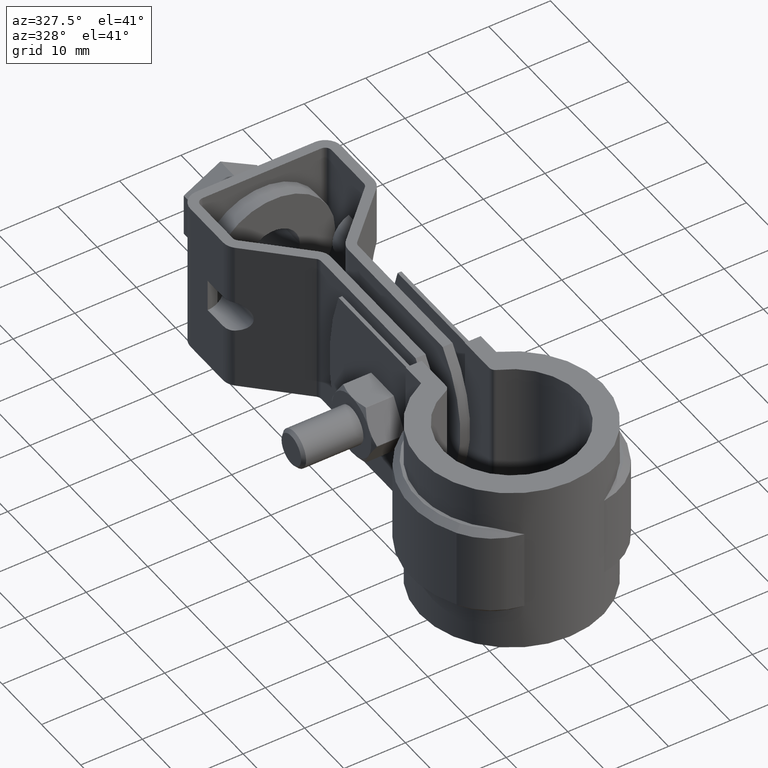
[diagram: clean part render]
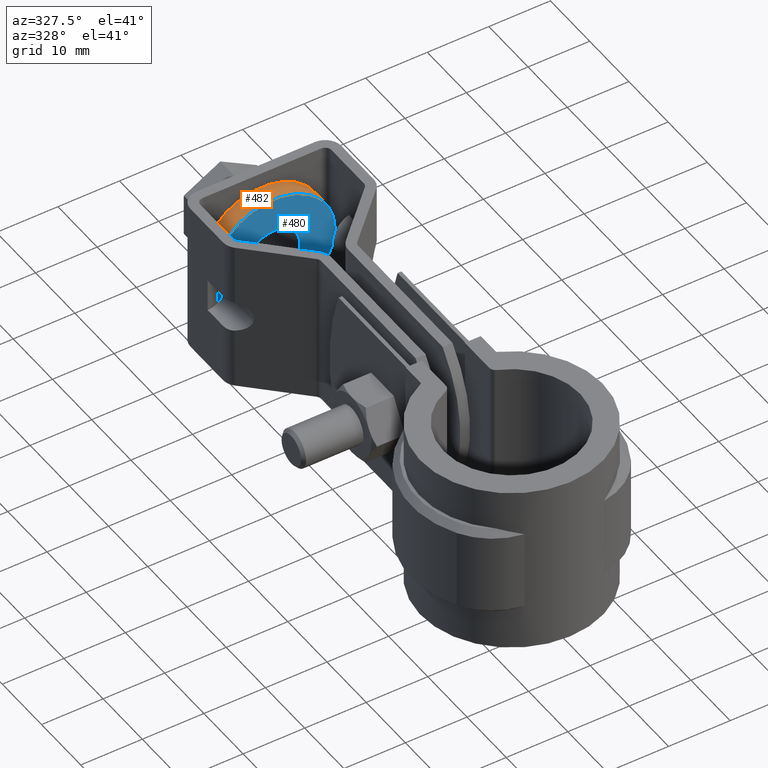
[diagram: same view with the hole feature highlighted: cylindrical wall and planar end face, labeled with their STEP entity ids]
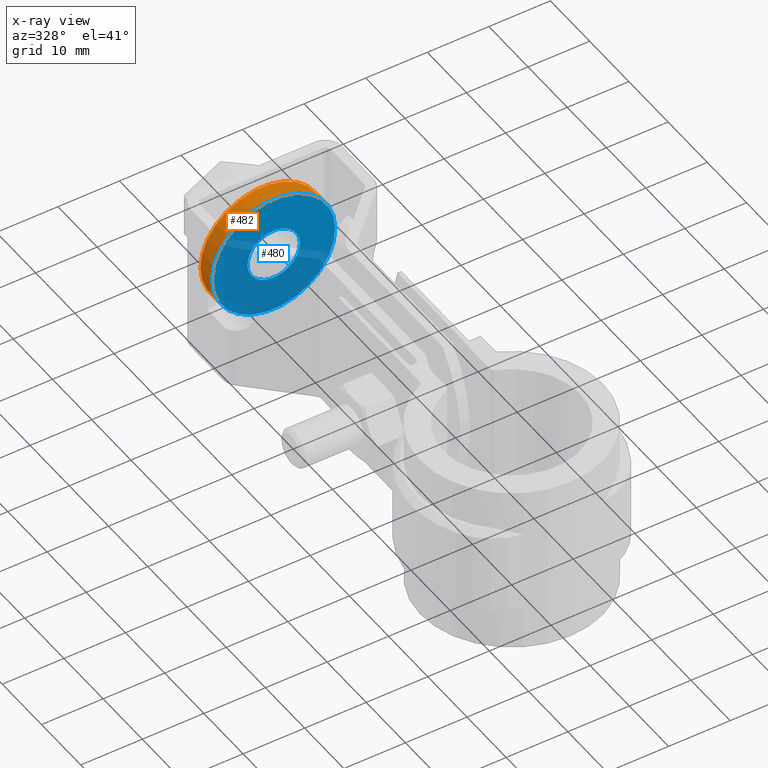
[diagram: x-ray of the same camera — body ghosted, the hole faces saturated]
A machine part, auxiliary view. The highlighted faces form one hole feature of diameter 20 mm: the cylindrical wall (entity #482, orange) and its adjacent planar end face (entity #480, blue) — they share a circular edge in the B-rep.
The next image is the same camera in x-ray (body ghosted, the hole faces saturated) — the bore reads through the body.
Wall:
#482 = ADVANCED_FACE( '', ( #877, #878 ), #879, .T. );
#877 = FACE_OUTER_BOUND( '', #1706, .T. );
#878 = FACE_OUTER_BOUND( '', #1707, .T. );
#879 = CYLINDRICAL_SURFACE( '', #1708, 10.0000000000000 );
#1706 = EDGE_LOOP( '', ( #4181 ) );
#1707 = EDGE_LOOP( '', ( #4182 ) );
#1708 = AXIS2_PLACEMENT_3D( '', #4183, #4184, #4185 );
#4181 = ORIENTED_EDGE( '', *, *, #4961, .T. );
#4182 = ORIENTED_EDGE( '', *, *, #4950, .F. );
#4183 = CARTESIAN_POINT( '', ( 1.86276663263598E-010, 60.6980146710080, -12.4999999873169 ) );
#4184 = DIRECTION( '', ( -8.53589041478956E-013, -1.00000000000000, -9.34504695848685E-011 ) );
#4185 = DIRECTION( '', ( 1.00000000000000, -8.53589041550490E-013, 7.65479249847249E-013 ) );
#4950 = EDGE_CURVE( '', #5844, #5844, #5845, .T. );
#4961 = EDGE_CURVE( '', #5863, #5863, #5864, .T. );
#5844 = VERTEX_POINT( '', #8426 );
#5845 = CIRCLE( '', #8427, 10.0000000000000 );
#5863 = VERTEX_POINT( '', #8454 );
#5864 = CIRCLE( '', #8455, 10.0000000000000 );
#8426 = CARTESIAN_POINT( '', ( 10.0000000001888, 63.6980146709995, -12.4999999870289 ) );
#8427 = AXIS2_PLACEMENT_3D( '', #9351, #9352, #9353 );
#8454 = CARTESIAN_POINT( '', ( 10.0000000001863, 60.6980146709995, -12.4999999873092 ) );
#8455 = AXIS2_PLACEMENT_3D( '', #9366, #9367, #9368 );
#9351 = CARTESIAN_POINT( '', ( 1.88837430388035E-010, 63.6980146710080, -12.4999999870365 ) );
#9352 = DIRECTION( '', ( 8.53589041478956E-013, 1.00000000000000, 9.34504695848685E-011 ) );
#9353 = DIRECTION( '', ( 1.00000000000000, -8.53589041550490E-013, 7.65479249847249E-013 ) );
#9366 = CARTESIAN_POINT( '', ( 1.86276663263598E-010, 60.6980146710080, -12.4999999873169 ) );
#9367 = DIRECTION( '', ( 8.53589041478956E-013, 1.00000000000000, 9.34504695848685E-011 ) );
#9368 = DIRECTION( '', ( 1.00000000000000, -8.53589041550490E-013, 7.65479249847249E-013 ) );
End face:
#480 = ADVANCED_FACE( '', ( #871, #872 ), #873, .F. );
#871 = FACE_BOUND( '', #1700, .T. );
#872 = FACE_OUTER_BOUND( '', #1701, .T. );
#873 = PLANE( '', #1702 );
#1700 = EDGE_LOOP( '', ( #4171 ) );
#1701 = EDGE_LOOP( '', ( #4172 ) );
#1702 = AXIS2_PLACEMENT_3D( '', #4173, #4174, #4175 );
#4171 = ORIENTED_EDGE( '', *, *, #4960, .T. );
#4172 = ORIENTED_EDGE( '', *, *, #4961, .F. );
#4173 = CARTESIAN_POINT( '', ( 1.86276663263598E-010, 60.6980146710080, -12.4999999873169 ) );
#4174 = DIRECTION( '', ( 8.53589041478956E-013, 1.00000000000000, 9.34504695848685E-011 ) );
#4175 = DIRECTION( '', ( 1.00000000000000, -8.53589041550490E-013, 7.65479249847249E-013 ) );
#4960 = EDGE_CURVE( '', #5861, #5861, #5862, .T. );
#4961 = EDGE_CURVE( '', #5863, #5863, #5864, .T. );
#5861 = VERTEX_POINT( '', #8452 );
#5862 = CIRCLE( '', #8453, 4.25000000000000 );
#5863 = VERTEX_POINT( '', #8454 );
#5864 = CIRCLE( '', #8455, 10.0000000000000 );
#8452 = CARTESIAN_POINT( '', ( 4.25000000018628, 60.6980146710044, -12.4999999873136 ) );
#8453 = AXIS2_PLACEMENT_3D( '', #9363, #9364, #9365 );
#8454 = CARTESIAN_POINT( '', ( 10.0000000001863, 60.6980146709995, -12.4999999873092 ) );
#8455 = AXIS2_PLACEMENT_3D( '', #9366, #9367, #9368 );
#9363 = CARTESIAN_POINT( '', ( 1.86274494859253E-010, 60.6980146710080, -12.4999999873169 ) );
#9364 = DIRECTION( '', ( 8.53589041478956E-013, 1.00000000000000, 9.34504695848685E-011 ) );
#9365 = DIRECTION( '', ( 1.00000000000000, -8.53589041550490E-013, 7.65479249847249E-013 ) );
#9366 = CARTESIAN_POINT( '', ( 1.86276663263598E-010, 60.6980146710080, -12.4999999873169 ) );
#9367 = DIRECTION( '', ( 8.53589041478956E-013, 1.00000000000000, 9.34504695848685E-011 ) );
#9368 = DIRECTION( '', ( 1.00000000000000, -8.53589041550490E-013, 7.65479249847249E-013 ) );